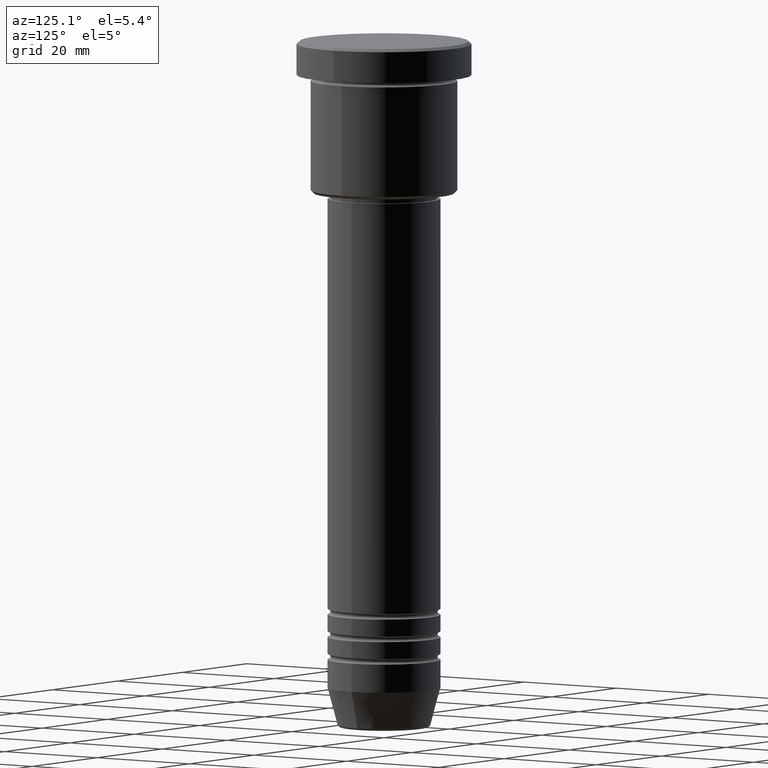
[diagram: clean part render]
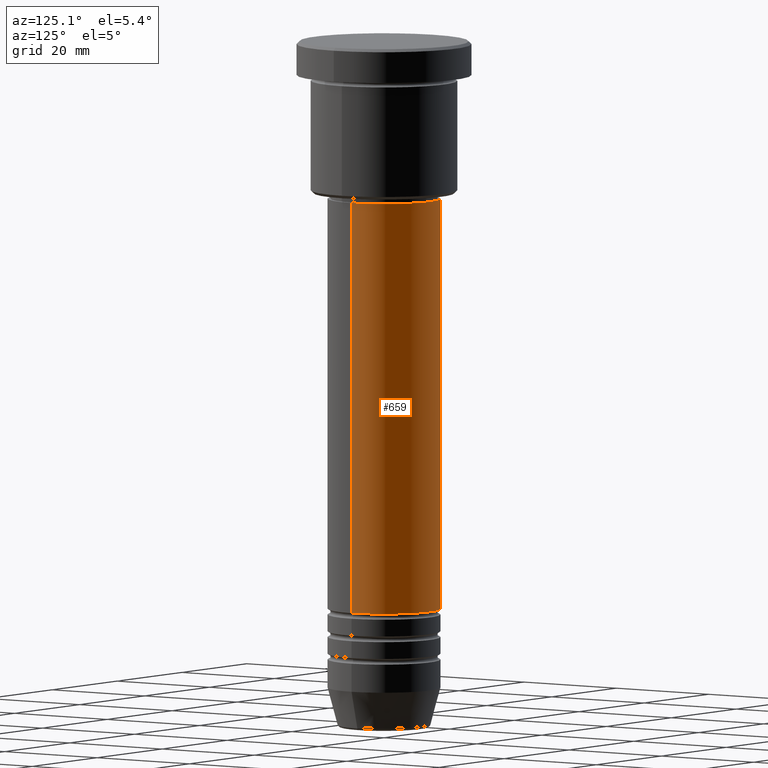
[diagram: same view with one face highlighted and labeled with its STEP entity id]
A machine part, auxiliary view. The second image highlights one B-rep face of the part: STEP entity #659.
In plain terms, the highlighted cylindrical surface (partial cylindrical patch) has radius 10 mm, axis along (-0, -0, 1).
Its self-contained STEP definition (entity closure, byte-faithful):
#33 = CIRCLE ( 'NONE', #911, 9.999999999999998224 ) ;
#44 = DIRECTION ( 'NONE',  ( 1.000000000000000000, 0.000000000000000000, 0.000000000000000000 ) ) ;
#123 = CARTESIAN_POINT ( 'NONE',  ( -10.00000000000000000, 1.224646799147353256E-15, 0.000000000000000000 ) ) ;
#130 = CARTESIAN_POINT ( 'NONE',  ( 0.000000000000000000, 0.000000000000000000, -28.00000000000003197 ) ) ;
#189 = CARTESIAN_POINT ( 'NONE',  ( 0.000000000000000000, 0.000000000000000000, 0.000000000000000000 ) ) ;
#249 = DIRECTION ( 'NONE',  ( 1.000000000000000000, 0.000000000000000000, 0.000000000000000000 ) ) ;
#300 = DIRECTION ( 'NONE',  ( -0.000000000000000000, -0.000000000000000000, 1.000000000000000000 ) ) ;
#321 = DIRECTION ( 'NONE',  ( -0.000000000000000000, -0.000000000000000000, 1.000000000000000000 ) ) ;
#341 = VERTEX_POINT ( 'NONE', #655 ) ;
#369 = DIRECTION ( 'NONE',  ( 1.000000000000000000, 0.000000000000000000, 0.000000000000000000 ) ) ;
#378 = EDGE_LOOP ( 'NONE', ( #719, #844, #822, #629 ) ) ;
#387 = LINE ( 'NONE', #751, #459 ) ;
#428 = EDGE_CURVE ( 'NONE', #800, #341, #1129, .T. ) ;
#448 = EDGE_CURVE ( 'NONE', #946, #341, #33, .T. ) ;
#459 = VECTOR ( 'NONE', #300, 1000.000000000000000 ) ;
#477 = VECTOR ( 'NONE', #321, 1000.000000000000000 ) ;
#511 = EDGE_CURVE ( 'NONE', #803, #800, #815, .T. ) ;
#584 = CARTESIAN_POINT ( 'NONE',  ( 10.00000000000000178, 0.000000000000000000, -100.9999999999999005 ) ) ;
#597 = CARTESIAN_POINT ( 'NONE',  ( 0.000000000000000000, 0.000000000000000000, -100.9999999999999005 ) ) ;
#610 = DIRECTION ( 'NONE',  ( -0.000000000000000000, -0.000000000000000000, 1.000000000000000000 ) ) ;
#629 = ORIENTED_EDGE ( 'NONE', *, *, #863, .F. ) ;
#655 = CARTESIAN_POINT ( 'NONE',  ( -9.999999999999998224, 1.224646799147353256E-15, -28.00000000000003197 ) ) ;
#659 = ADVANCED_FACE ( 'NONE', ( #1170 ), #737, .T. ) ;
#719 = ORIENTED_EDGE ( 'NONE', *, *, #511, .T. ) ;
#726 = AXIS2_PLACEMENT_3D ( 'NONE', #189, #1160, #369 ) ;
#737 = CYLINDRICAL_SURFACE ( 'NONE', #726, 10.00000000000000000 ) ;
#751 = CARTESIAN_POINT ( 'NONE',  ( 10.00000000000000000, 0.000000000000000000, 0.000000000000000000 ) ) ;
#800 = VERTEX_POINT ( 'NONE', #1119 ) ;
#803 = VERTEX_POINT ( 'NONE', #584 ) ;
#815 = CIRCLE ( 'NONE', #835, 10.00000000000000178 ) ;
#822 = ORIENTED_EDGE ( 'NONE', *, *, #448, .F. ) ;
#835 = AXIS2_PLACEMENT_3D ( 'NONE', #597, #610, #249 ) ;
#844 = ORIENTED_EDGE ( 'NONE', *, *, #428, .T. ) ;
#863 = EDGE_CURVE ( 'NONE', #803, #946, #387, .T. ) ;
#864 = DIRECTION ( 'NONE',  ( -0.000000000000000000, -0.000000000000000000, 1.000000000000000000 ) ) ;
#911 = AXIS2_PLACEMENT_3D ( 'NONE', #130, #864, #44 ) ;
#946 = VERTEX_POINT ( 'NONE', #1148 ) ;
#1119 = CARTESIAN_POINT ( 'NONE',  ( -10.00000000000000178, 1.224646799147353454E-15, -100.9999999999999005 ) ) ;
#1129 = LINE ( 'NONE', #123, #477 ) ;
#1148 = CARTESIAN_POINT ( 'NONE',  ( 9.999999999999998224, 0.000000000000000000, -28.00000000000003197 ) ) ;
#1160 = DIRECTION ( 'NONE',  ( -0.000000000000000000, -0.000000000000000000, 1.000000000000000000 ) ) ;
#1170 = FACE_OUTER_BOUND ( 'NONE', #378, .T. ) ;